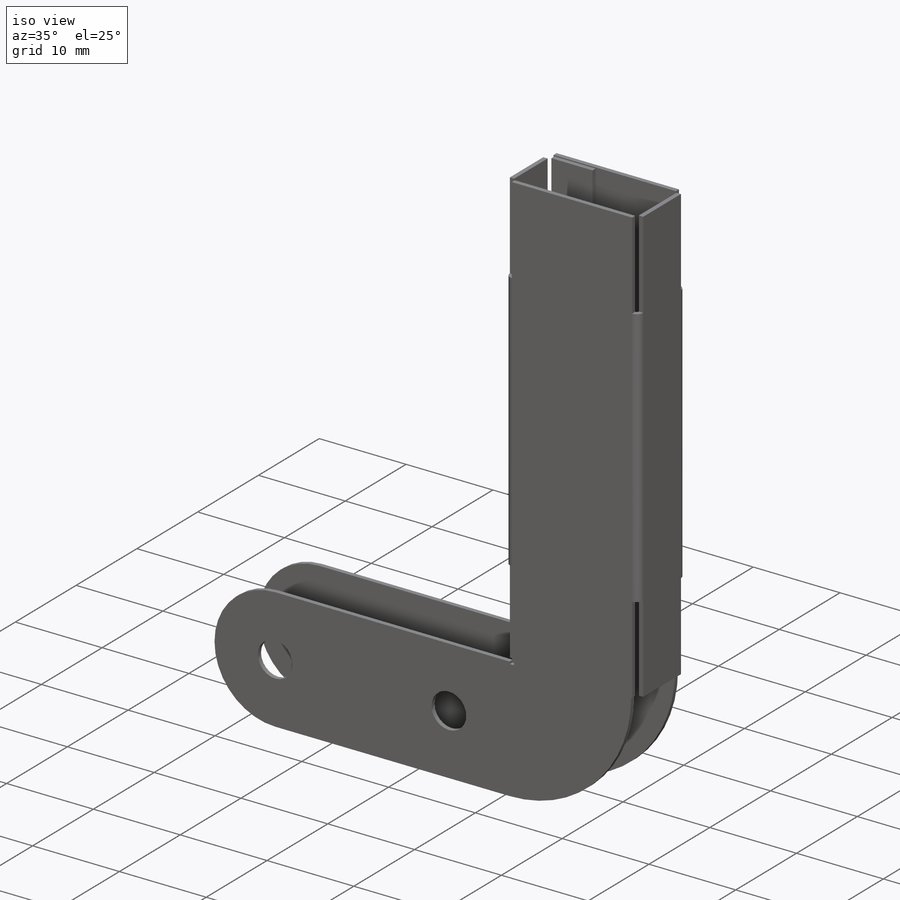
[diagram: iso view]
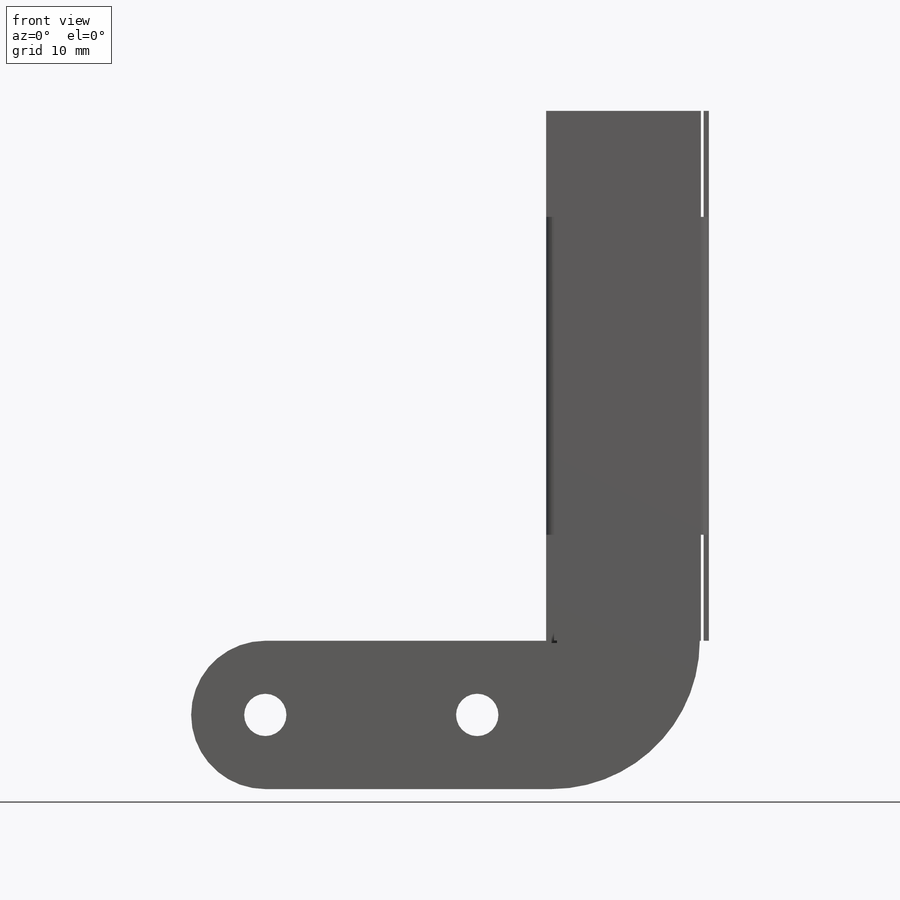
[diagram: front view]
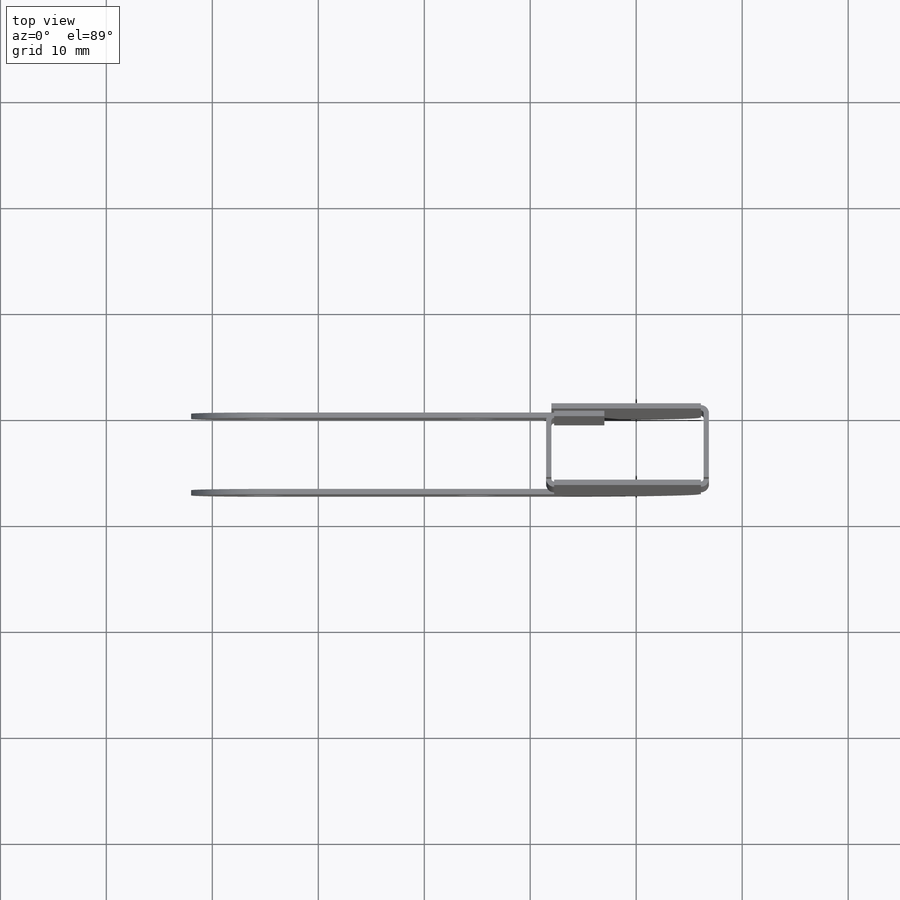
[diagram: top view]
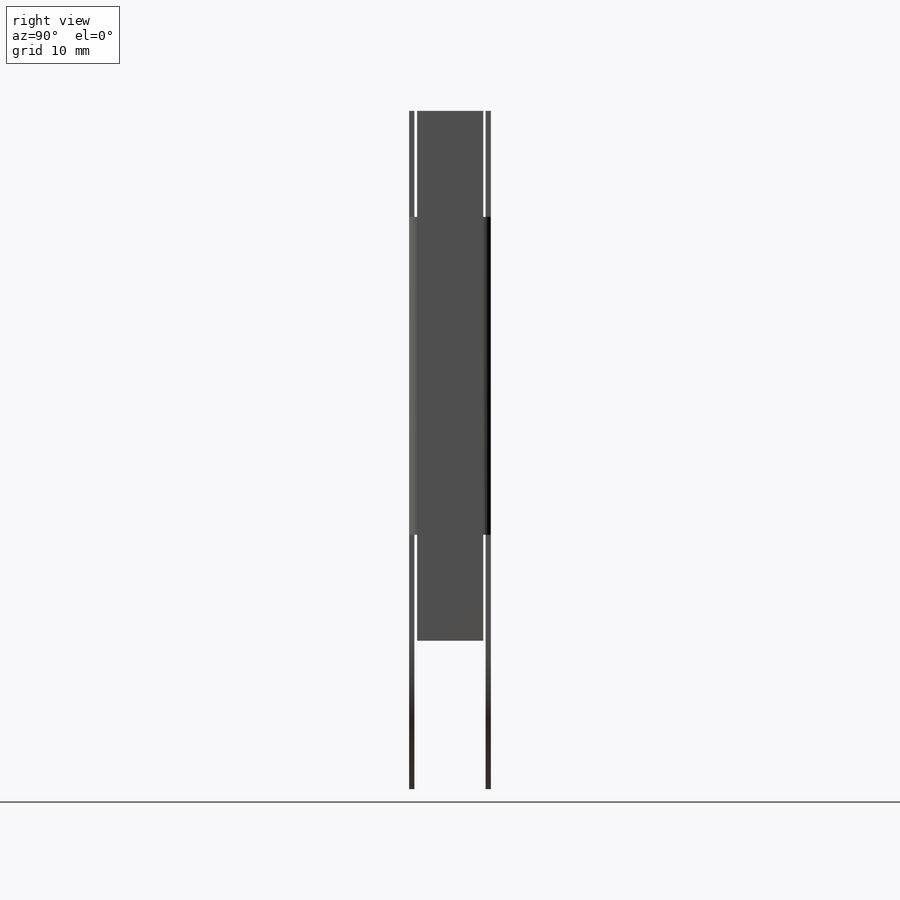
[diagram: right view]
SOLIDWORKS PART (.sldprt)
format: sldprt  version: not decoded by parser v0  size: 412,160 bytes
history: native  units: mm
features: sketch x10, sheet_metal_op x4, cut_extrude x4, material x1 + 5 further entries (+11 scaffold rows collapsed; 2 parser-record rows omitted)
feature tree (37):
  scaffold x11  (default folders/planes/origin — collapsed)
  material  "Material <not specified>"
  sketch  "Sketch1"  dims[c1.D1=4.0mm c1.D2=~2.356181mm c2.D1=6.0mm c2.D3=~4.044472mm c2.D2=0.75mm c2.D4=4.75mm c2.D5=~3.370545mm c2.D6=4.0mm c3.D5=6.0mm c3.D2=~81.96627mm c3.D11=4.0mm c3.D10=~3.988947mm c3.D12=~7.919856mm c3.D1=8.0mm c4.D2=8.0mm c4.D3=17.0mm c4.D4=1.0mm c5.D2=1.5mm c5.D3=1.5mm c5.D4=165.0deg c6.D4=37.0mm c6.D5=12.0mm c6.D6=20.0mm c6.D7=80.0mm c7.D5=~8.446485mm c7.D4=11.0mm c8.D5=42.0mm c8.D2=~61.940166mm c8.D3=20.0mm c9.D2=5.0mm c9.D3=8.0mm c9.D4=50.0mm c10.D3=8.0mm c10.D2=14.0mm c11.D2=90.0deg c11.D5=14.0mm c12.D5=90.0deg c13.D5=80.0mm c13.D7=20.0mm c13.D8=11.0mm c13.D9=11.0mm c13.D10=~7.566407mm c13.D11=~7.283203mm c14.D7=20.0mm c14.D11=14.0mm c14.D10=7.0mm c14.D12=~56.448939mm c14.D3=9.0mm c15.D12=7.0mm c15.D13=14.0mm c15.D14=7.0mm c15.D15=7.0mm c15.D16=7.0mm c15.D3=8.0mm c15.D2=22.0mm c16.D3=4.0mm c16.D1=8.0mm c17.D3=20.0mm c17.D5=7.0mm c17.D7=7.0mm c17.D1=~28.590117mm c17.D2=50.0mm c18.D2=90.0deg c18.D4=~14.590117mm c18.D6=27.0mm c18.D7=14.0mm c18.D8=50.0mm c18.D1=4.0mm c19.D2=4.0mm c19.D4=5.5mm c19.D5=5.5mm]
  sheet_metal_op  "Sheet-Metal1"
  sheet_metal_op  "Base-Flange1"
  sketch  "Sketch32"  dims[c1.D1=14.0mm c1.D2=14.0mm c2.D1=0.5mm c2.D2=0.5mm c2.D3=0.5mm c3.D2=0.5mm c3.D3=~39.458803mm c4.D2=0.5mm c4.D1=0.5mm c5.D2=0.5mm]
  parser-record x2  (decoder bookkeeping rows leaked as tree rows — omitted from the tree; the rows remain in map.json)
  "SketchBend2"
  sketch  "Sketch35"
  sheet_metal_op  "EdgeBend1"
  sketch  "Sketch38"
  sheet_metal_op  "EdgeBend2"
  sketch  "Sketch41"  dims[c1.D1=0.75mm c1.D2=0.75mm c2.D1=0.75mm c2.D2=0.75mm]
  cut_extrude  "Cut-Extrude14"  Depth=10mm
  sketch  "Sketch42"  dims[c1.D1=0.75mm c1.D2=0.75mm c2.D1=0.75mm c2.D2=0.75mm c3.D1=~4.121394mm c3.D2=~6.565651mm c4.D1=0.75mm c4.D2=0.75mm c5.D1=~0.528959mm c5.D2=~0.087944mm c6.D1=0.75mm c6.D2=0.75mm]
  cut_extrude  "Cut-Extrude15"  Depth=10mm
  sketch  "Sketch43"  dims[c1.D1=0.75mm c1.D2=0.75mm c2.D1=0.75mm c2.D2=0.75mm]
  cut_extrude  "Cut-Extrude16"  Depth=10mm
  "Flat-Pattern1"
  sketch  "Bend-Lines1"
  sketch  "Bounding-Box1"
  "Flatten-<SketchBend2>1"
  "Flatten-<EdgeBend1>1"
  "Flatten-<EdgeBend2>1"
  sketch  "Sketch31"  dims[c1.D1=0.25mm c1.D2=0.25mm c1.D3=10.0mm c1.D4=~10.730763mm c1.D5=~0.649166mm c2.D1=~10.07868mm c2.D2=~0.462593mm c3.D1=~0.462593mm c4.D1=90.0deg c5.D1=~0.462593mm c6.D1=270.0deg c7.D1=0.5mm c7.D2=10.0mm c7.D3=~10.734641mm c7.D4=~0.715411mm c8.D3=~12.589559mm c8.D4=~1.177931mm c9.D3=~16.209574mm c9.D4=~1.512259mm c10.D3=10.0mm c10.D4=~0.715411mm c11.D4=90.0deg c12.D4=0.5mm c12.D5=0.5mm c12.D6=10.0mm c12.D7=0.5mm c12.D8=10.0mm]
  cut_extrude  "Cut-Extrude11"  [1 undecoded]
decode coverage: 9 of 18 modeling features carry decoded parameters; 5 rows unclassified (native names shown)
note: ~ marks probable driven/reference dimensions
note: 1 parameter value undecoded
note: suppression state not decoded; provenance and decode notes live in map.json
